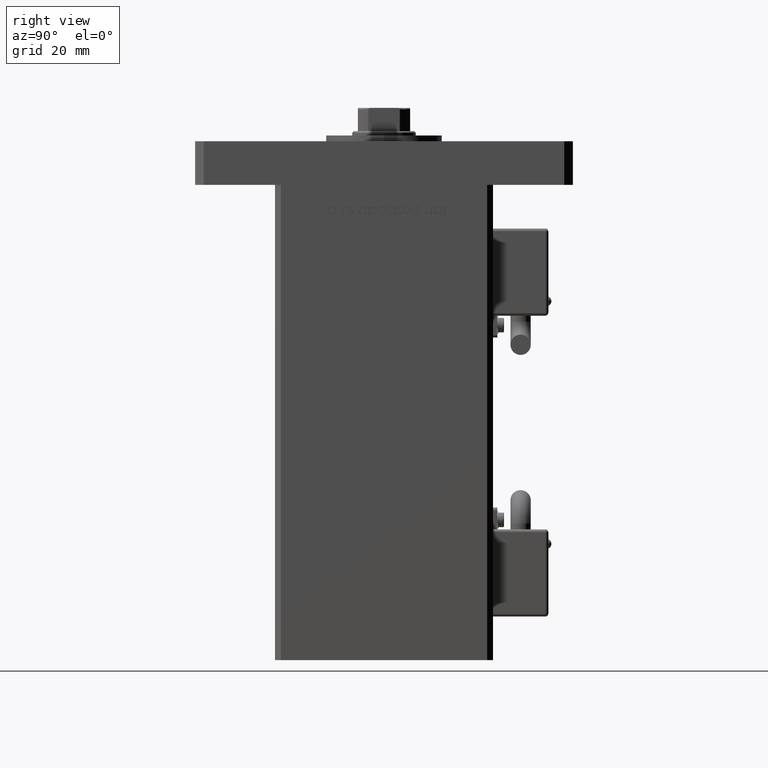
[diagram: clean part render]
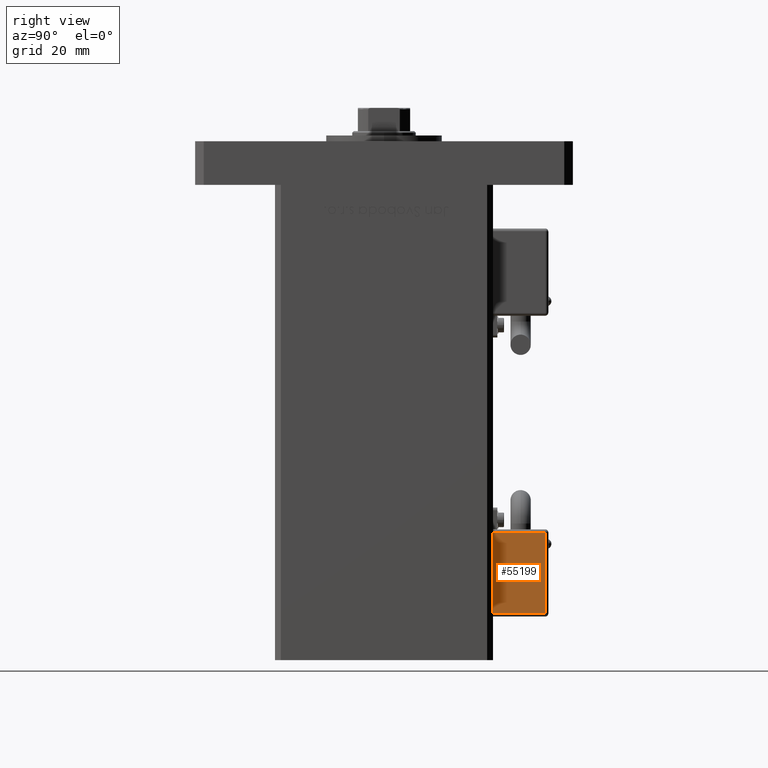
[diagram: same view with one face highlighted and labeled with its STEP entity id]
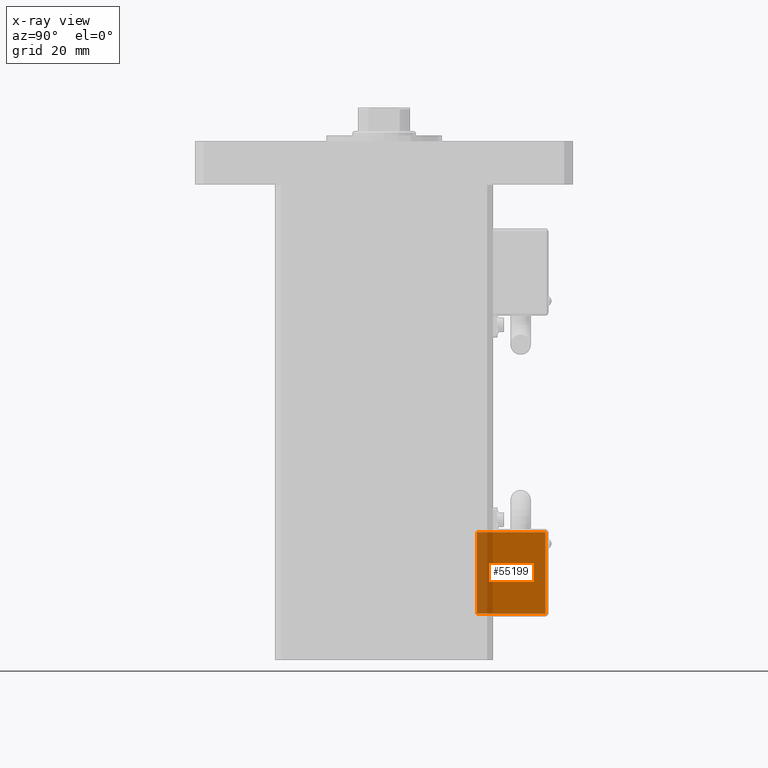
[diagram: x-ray of the same camera — body ghosted, the highlighted face saturated]
A machine part, right view. The second image highlights one B-rep face of the part: STEP entity #55199.
The next image is the same camera in x-ray: the body ghosted, the highlighted face saturated — about 23% of this face is hidden behind the body in this view.
In plain terms, the highlighted planar face has unit normal (-1, 0, 0).
Its self-contained STEP definition (entity closure, byte-faithful):
#3479 = DIRECTION ( 'NONE',  ( 1.000000000000000000, 4.930380657629929601E-32, 1.094764425253299406E-47 ) ) ;
#4185 = ORIENTED_EDGE ( 'NONE', *, *, #9578, .T. ) ;
#4616 = DIRECTION ( 'NONE',  ( 0.000000000000000000, -2.220446049250000002E-16, 1.000000000000000000 ) ) ;
#8261 = CARTESIAN_POINT ( 'NONE',  ( -10.80000000000000071, 50.50000000000000000, -26.00000000000000000 ) ) ;
#9340 = ORIENTED_EDGE ( 'NONE', *, *, #9573, .T. ) ;
#9573 = EDGE_CURVE ( 'NONE', #20815, #45447, #38592, .T. ) ;
#9578 = EDGE_CURVE ( 'NONE', #55475, #20815, #39159, .T. ) ;
#12898 = CARTESIAN_POINT ( 'NONE',  ( -10.80000000000000071, 26.00000000000000000, -55.00000000000000000 ) ) ;
#13354 = VERTEX_POINT ( 'NONE', #42572 ) ;
#15373 = VECTOR ( 'NONE', #28140, 1000.000000000000000 ) ;
#17765 = ORIENTED_EDGE ( 'NONE', *, *, #47470, .T. ) ;
#20815 = VERTEX_POINT ( 'NONE', #40040 ) ;
#26345 = VECTOR ( 'NONE', #50591, 1000.000000000000000 ) ;
#27561 = LINE ( 'NONE', #49907, #15373 ) ;
#28140 = DIRECTION ( 'NONE',  ( -2.220446049250000002E-16, -1.200000000000000024E-16, 1.000000000000000000 ) ) ;
#29453 = EDGE_CURVE ( 'NONE', #45447, #13354, #27561, .T. ) ;
#29706 = DIRECTION ( 'NONE',  ( 3.108624468950000014E-32, -1.000000000000000000, -1.400000000000000069E-16 ) ) ;
#30846 = DIRECTION ( 'NONE',  ( 2.220446049250000002E-16, 1.200000000000000024E-16, -1.000000000000000000 ) ) ;
#32157 = AXIS2_PLACEMENT_3D ( 'NONE', #12898, #3479, #4616 ) ;
#34004 = CARTESIAN_POINT ( 'NONE',  ( -10.80000000000000071, 26.00000000000000000, -54.00000000000000000 ) ) ;
#34891 = VECTOR ( 'NONE', #30846, 1000.000000000000000 ) ;
#38592 = LINE ( 'NONE', #34004, #48624 ) ;
#39159 = LINE ( 'NONE', #39730, #34891 ) ;
#39273 = FACE_OUTER_BOUND ( 'NONE', #44797, .T. ) ;
#39730 = CARTESIAN_POINT ( 'NONE',  ( -10.80000000000000071, 50.50000000000000000, -55.00000000000000000 ) ) ;
#40040 = CARTESIAN_POINT ( 'NONE',  ( -10.80000000000000071, 50.50000000000000000, -54.00000000000000000 ) ) ;
#41157 = CARTESIAN_POINT ( 'NONE',  ( -10.80000000000000071, 26.00000000000000000, -26.00000000000000000 ) ) ;
#42572 = CARTESIAN_POINT ( 'NONE',  ( -10.80000000000000071, 27.00000000000000000, -26.00000000000000000 ) ) ;
#43009 = PLANE ( 'NONE',  #32157 ) ;
#44797 = EDGE_LOOP ( 'NONE', ( #17765, #4185, #9340, #52464 ) ) ;
#45447 = VERTEX_POINT ( 'NONE', #55508 ) ;
#47470 = EDGE_CURVE ( 'NONE', #13354, #55475, #51155, .T. ) ;
#48624 = VECTOR ( 'NONE', #29706, 1000.000000000000000 ) ;
#49907 = CARTESIAN_POINT ( 'NONE',  ( -10.80000000000000071, 27.00000000000000000, -55.00000000000000000 ) ) ;
#50591 = DIRECTION ( 'NONE',  ( -3.108624468950000014E-32, 1.000000000000000000, 1.400000000000000069E-16 ) ) ;
#51155 = LINE ( 'NONE', #41157, #26345 ) ;
#52464 = ORIENTED_EDGE ( 'NONE', *, *, #29453, .T. ) ;
#55199 = ADVANCED_FACE ( 'NONE', ( #39273 ), #43009, .F. ) ;
#55475 = VERTEX_POINT ( 'NONE', #8261 ) ;
#55508 = CARTESIAN_POINT ( 'NONE',  ( -10.80000000000000071, 27.00000000000000000, -54.00000000000000000 ) ) ;